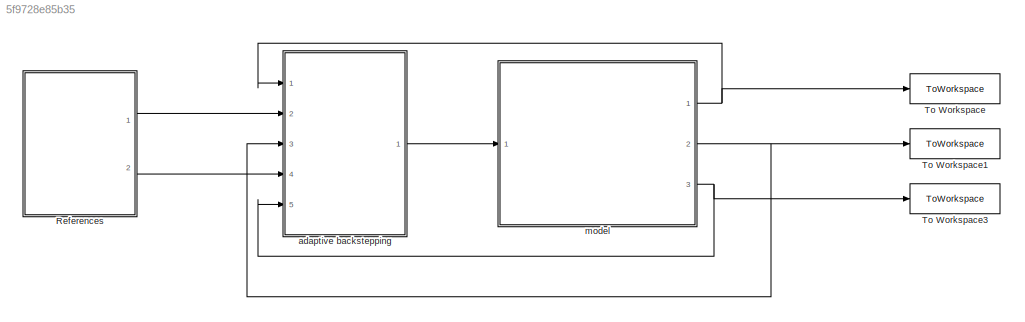
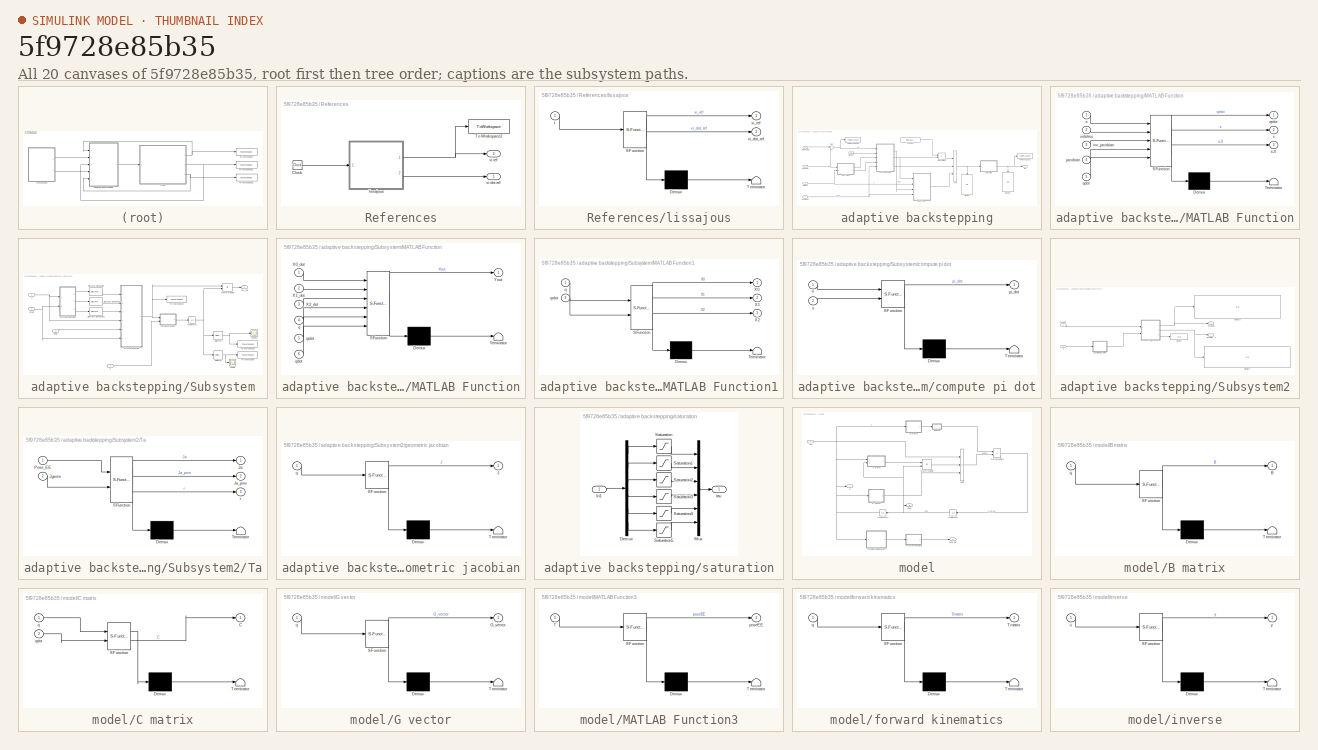
[diagram: thumbnail index - all 20 canvases of the model, root first then tree order]
MODEL slx_5f9728e85b35
KIND model
CONFIG AbsTol = auto
CONFIG EnableMultiTasking = off
CONFIG FixedStep = auto
CONFIG InitFcn = parametersUR5_ADAPTIVE_BACKSTEPPING
CONFIG MaxStep = auto
CONFIG MinStep = auto
CONFIG RelTol = 1e-3
CONFIG SampleTimeConstraint = Unconstrained
CONFIG SolverName = VariableStepAuto
CONFIG StartTime = 0.0
CONFIG StopTime = 30
BLOCK [SubSystem] References
  Ports = [0, 2]
  RequestExecContextInheritance = off
BLOCK [Clock] References/Clock
BLOCK [ToWorkspace] References/To Workspace2
  FixptAsFi = on
  MaxDataPoints = inf
  Ports = [1]
  SampleTime = Ts
  SaveFormat = Timeseries
  VariableName = refEE
BLOCK [SubSystem] References/lissajous
  ErrorFcn = Stateflow.Translate.translate
  PermitHierarchicalResolution = ExplicitOnly
  Ports = [1, 2]
  RequestExecContextInheritance = off
  SFBlockType = MATLAB Function
  TreatAsAtomicUnit = on
BLOCK [Demux] References/lissajous/ Demux 
  Outputs = 1
  Ports = [1, 1]
BLOCK [S-Function] References/lissajous/ SFunction 
  EnableBusSupport = on
  FunctionName = sf_sfun
  PortCounts = [1 3]
  Ports = [1, 3]
  SFcnIsStateOwnerBlock = off
  SFunctionDeploymentMode = off
  Tag = Stateflow S-Function 13
BLOCK [Terminator] References/lissajous/ Terminator 
BLOCK [Inport] References/lissajous/t
BLOCK [Outport] References/lissajous/xi_dot_ref
  Port = 2
BLOCK [Outport] References/lissajous/xi_ref
BLOCK [Outport] References/xi dot ref
BLOCK [Outport] References/xi ref
  Port = 2
BLOCK [ToWorkspace] To Workspace
  FixptAsFi = on
  MaxDataPoints = inf
  Ports = [1]
  SampleTime = Ts
  SaveFormat = Timeseries
  VariableName = q
BLOCK [ToWorkspace] To Workspace1
  FixptAsFi = on
  MaxDataPoints = inf
  Ports = [1]
  SampleTime = Ts
  SaveFormat = Timeseries
  VariableName = qdot
BLOCK [ToWorkspace] To Workspace3
  FixptAsFi = on
  MaxDataPoints = inf
  Ports = [1]
  SampleTime = Ts
  SaveFormat = Timeseries
  VariableName = EEPose
BLOCK [SubSystem] adaptive backstepping
  Ports = [5, 1]
  RequestExecContextInheritance = off
  StopFcn = show_results
BLOCK [Sum] adaptive backstepping/Add
  IconShape = rectangular
  Inputs = +++
  Ports = [3, 1]
BLOCK [Constant] adaptive backstepping/Constant
  Value = diag([1,1,1,1,1,1])*400
BLOCK [Display] adaptive backstepping/Display
  Decimation = 1
  NameLocation = left
  Ports = [1]
BLOCK [Display] adaptive backstepping/Display1
  Decimation = 1
  NameLocation = left
  Ports = [1]
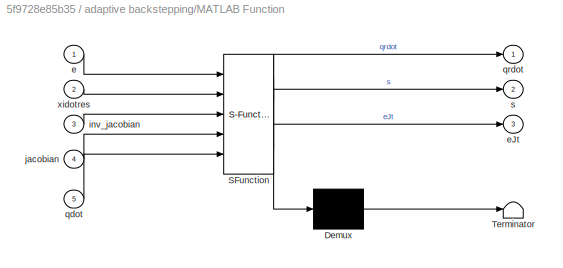
BLOCK [SubSystem] adaptive backstepping/MATLAB Function
  ErrorFcn = Stateflow.Translate.translate
  PermitHierarchicalResolution = ExplicitOnly
  Ports = [5, 3]
  RequestExecContextInheritance = off
  SFBlockType = MATLAB Function
  TreatAsAtomicUnit = on
BLOCK [Demux] adaptive backstepping/MATLAB Function/ Demux 
  Outputs = 1
  Ports = [1, 1]
BLOCK [S-Function] adaptive backstepping/MATLAB Function/ SFunction 
  EnableBusSupport = on
  FunctionName = sf_sfun
  PortCounts = [5 4]
  Ports = [5, 4]
  SFcnIsStateOwnerBlock = off
  SFunctionDeploymentMode = off
  Tag = Stateflow S-Function 5
BLOCK [Terminator] adaptive backstepping/MATLAB Function/ Terminator 
BLOCK [Inport] adaptive backstepping/MATLAB Function/e
BLOCK [Outport] adaptive backstepping/MATLAB Function/eJt
  Port = 3
BLOCK [Inport] adaptive backstepping/MATLAB Function/inv_jacobian
  Port = 3
BLOCK [Inport] adaptive backstepping/MATLAB Function/jacobian
  Port = 4
BLOCK [Inport] adaptive backstepping/MATLAB Function/qdot
  Port = 5
BLOCK [Outport] adaptive backstepping/MATLAB Function/qrdot
  VectorParamsAs1DForOutWhenUnconnected = off
BLOCK [Outport] adaptive backstepping/MATLAB Function/s
  Port = 2
BLOCK [Inport] adaptive backstepping/MATLAB Function/xidotres
  Port = 2
BLOCK [Product] adaptive backstepping/Matrix Multiply2
  Multiplication = Matrix(*)
  Ports = [2, 1]
BLOCK [Inport] adaptive backstepping/Pose EE
  Port = 5
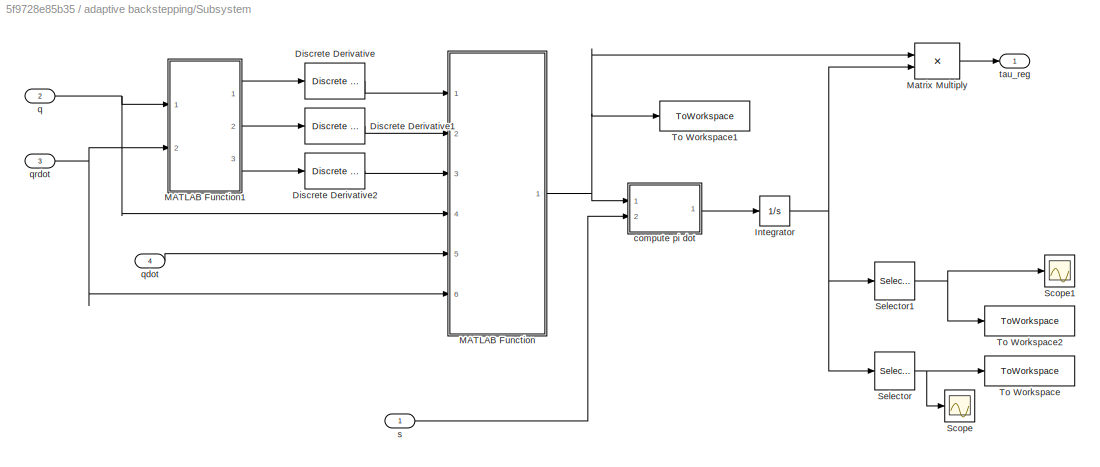
BLOCK [SubSystem] adaptive backstepping/Subsystem
  Ports = [4, 1]
  RequestExecContextInheritance = off
BLOCK [Reference] adaptive backstepping/Subsystem/Discrete Derivative  REF=simulink/Discrete/Discrete Derivative
  Ports = [1, 1]
  SourceBlock = simulink/Discrete/Discrete Derivative
  SourceProductBaseCode = SL
  SourceType = Discrete Derivative
BLOCK [Reference] adaptive backstepping/Subsystem/Discrete Derivative1  REF=simulink/Discrete/Discrete Derivative
  Ports = [1, 1]
  SourceBlock = simulink/Discrete/Discrete Derivative
  SourceProductBaseCode = SL
  SourceType = Discrete Derivative
BLOCK [Reference] adaptive backstepping/Subsystem/Discrete Derivative2  REF=simulink/Discrete/Discrete Derivative
  Ports = [1, 1]
  SourceBlock = simulink/Discrete/Discrete Derivative
  SourceProductBaseCode = SL
  SourceType = Discrete Derivative
BLOCK [Integrator] adaptive backstepping/Subsystem/Integrator
  InitialCondition = init_cond_regress
  Ports = [1, 1]
BLOCK [SubSystem] adaptive backstepping/Subsystem/MATLAB Function
  ErrorFcn = Stateflow.Translate.translate
  PermitHierarchicalResolution = ExplicitOnly
  Ports = [6, 1]
  RequestExecContextInheritance = off
  SFBlockType = MATLAB Function
  TreatAsAtomicUnit = on
BLOCK [Demux] adaptive backstepping/Subsystem/MATLAB Function/ Demux 
  Outputs = 1
  Ports = [1, 1]
BLOCK [S-Function] adaptive backstepping/Subsystem/MATLAB Function/ SFunction 
  EnableBusSupport = on
  FunctionName = sf_sfun
  PortCounts = [6 2]
  Ports = [6, 2]
  SFcnIsStateOwnerBlock = off
  SFunctionDeploymentMode = off
  Tag = Stateflow S-Function 11
BLOCK [Terminator] adaptive backstepping/Subsystem/MATLAB Function/ Terminator 
BLOCK [Inport] adaptive backstepping/Subsystem/MATLAB Function/X0_dot
BLOCK [Inport] adaptive backstepping/Subsystem/MATLAB Function/X1_dot
  Port = 2
BLOCK [Inport] adaptive backstepping/Subsystem/MATLAB Function/X2_dot
  Port = 3
BLOCK [Outport] adaptive backstepping/Subsystem/MATLAB Function/Yout
BLOCK [Inport] adaptive backstepping/Subsystem/MATLAB Function/q
  Port = 4
BLOCK [Inport] adaptive backstepping/Subsystem/MATLAB Function/qdot
  Port = 6
BLOCK [Inport] adaptive backstepping/Subsystem/MATLAB Function/qrdot
  Port = 5
BLOCK [SubSystem] adaptive backstepping/Subsystem/MATLAB Function1
  ErrorFcn = Stateflow.Translate.translate
  PermitHierarchicalResolution = ExplicitOnly
  Ports = [2, 3]
  RequestExecContextInheritance = off
  SFBlockType = MATLAB Function
  TreatAsAtomicUnit = on
BLOCK [Demux] adaptive backstepping/Subsystem/MATLAB Function1/ Demux 
  Outputs = 1
  Ports = [1, 1]
BLOCK [S-Function] adaptive backstepping/Subsystem/MATLAB Function1/ SFunction 
  EnableBusSupport = on
  FunctionName = sf_sfun
  PortCounts = [2 4]
  Ports = [2, 4]
  SFcnIsStateOwnerBlock = off
  SFunctionDeploymentMode = off
  Tag = Stateflow S-Function 8
BLOCK [Terminator] adaptive backstepping/Subsystem/MATLAB Function1/ Terminator 
BLOCK [Outport] adaptive backstepping/Subsystem/MATLAB Function1/X0
BLOCK [Outport] adaptive backstepping/Subsystem/MATLAB Function1/X1
  Port = 2
BLOCK [Outport] adaptive backstepping/Subsystem/MATLAB Function1/X2
  Port = 3
BLOCK [Inport] adaptive backstepping/Subsystem/MATLAB Function1/q
BLOCK [Inport] adaptive backstepping/Subsystem/MATLAB Function1/qrdot
  Port = 2
BLOCK [Product] adaptive backstepping/Subsystem/Matrix Multiply
  Multiplication = Matrix(*)
  Ports = [2, 1]
BLOCK [Scope] adaptive backstepping/Subsystem/Scope
  Floating = off
  NumInputPorts = 1
  Ports = [1]
  ScopeSpecificationString = Simulink.scopes.TimeScopeBlockCfg('CurrentConfiguration', extmgr.ConfigurationSet(extmgr.Configuration('Core','General UI',true),extmgr.Configuration('Core','Source UI',true),extmgr.Configuration('Sources','WiredSimulink',true,'DataLoggingVariableName','ScopeData2'),extmgr.Configuration('Visuals','Time Domain',true,'SerializedDisplays',{struct('MinYLimReal','-0.69968','MaxYLimReal','8.00446','YLab...<+1478ch>
BLOCK [Scope] adaptive backstepping/Subsystem/Scope1
  Floating = off
  NumInputPorts = 1
  Ports = [1]
  ScopeSpecificationString = Simulink.scopes.TimeScopeBlockCfg('CurrentConfiguration', extmgr.ConfigurationSet(extmgr.Configuration('Core','General UI',true),extmgr.Configuration('Core','Source UI',true),extmgr.Configuration('Sources','WiredSimulink',true,'DataLoggingVariableName','ScopeData3'),extmgr.Configuration('Visuals','Time Domain',true,'SerializedDisplays',{struct('MinYLimReal','-3.44805','MaxYLimReal','3.14766','YLab...<+1959ch>
BLOCK [Selector] adaptive backstepping/Subsystem/Selector
  IndexOptions = Index vector (dialog)
  Indices = [1:6]
  InputPortWidth = 60
  OutputSizes = 1
  Ports = [1, 1]
BLOCK [Selector] adaptive backstepping/Subsystem/Selector1
  IndexOptions = Index vector (dialog)
  Indices = [25:60]
  InputPortWidth = 60
  OutputSizes = 1
  Ports = [1, 1]
BLOCK [ToWorkspace] adaptive backstepping/Subsystem/To Workspace
  FixptAsFi = on
  MaxDataPoints = inf
  Ports = [1]
  SampleTime = Ts
  SaveFormat = Timeseries
  VariableName = estim_masses
BLOCK [ToWorkspace] adaptive backstepping/Subsystem/To Workspace1
  FixptAsFi = on
  MaxDataPoints = inf
  Ports = [1]
  SampleTime = Ts
  SaveFormat = Timeseries
  VariableName = Yregressore
BLOCK [ToWorkspace] adaptive backstepping/Subsystem/To Workspace2
  FixptAsFi = on
  MaxDataPoints = inf
  Ports = [1]
  SampleTime = Ts
  SaveFormat = Timeseries
  VariableName = tensors_masses
BLOCK [SubSystem] adaptive backstepping/Subsystem/compute pi dot
  ErrorFcn = Stateflow.Translate.translate
  PermitHierarchicalResolution = ExplicitOnly
  Ports = [2, 1]
  RequestExecContextInheritance = off
  SFBlockType = MATLAB Function
  TreatAsAtomicUnit = on
BLOCK [Demux] adaptive backstepping/Subsystem/compute pi dot/ Demux 
  Outputs = 1
  Ports = [1, 1]
BLOCK [S-Function] adaptive backstepping/Subsystem/compute pi dot/ SFunction 
  EnableBusSupport = on
  FunctionName = sf_sfun
  PortCounts = [2 2]
  Ports = [2, 2]
  SFcnIsStateOwnerBlock = off
  SFunctionDeploymentMode = off
  Tag = Stateflow S-Function 12
BLOCK [Terminator] adaptive backstepping/Subsystem/compute pi dot/ Terminator 
BLOCK [Inport] adaptive backstepping/Subsystem/compute pi dot/Y
BLOCK [Outport] adaptive backstepping/Subsystem/compute pi dot/pi_dot
BLOCK [Inport] adaptive backstepping/Subsystem/compute pi dot/s
  Port = 2
BLOCK [Inport] adaptive backstepping/Subsystem/q
  Port = 2
BLOCK [Inport] adaptive backstepping/Subsystem/qdot
  Port = 4
BLOCK [Inport] adaptive backstepping/Subsystem/qrdot
  Port = 3
BLOCK [Inport] adaptive backstepping/Subsystem/s
BLOCK [Outport] adaptive backstepping/Subsystem/tau_reg
BLOCK [SubSystem] adaptive backstepping/Subsystem2
  Ports = [2, 2]
  RequestExecContextInheritance = off
BLOCK [Display] adaptive backstepping/Subsystem2/Display
  Decimation = 1
  Ports = [1]
BLOCK [Display] adaptive backstepping/Subsystem2/Display2
  Decimation = 1
  Ports = [1]
BLOCK [Display] adaptive backstepping/Subsystem2/Display4
  Decimation = 1
  Ports = [1]
BLOCK [Inport] adaptive backstepping/Subsystem2/Pose EE
BLOCK [SubSystem] adaptive backstepping/Subsystem2/Ta
  ErrorFcn = Stateflow.Translate.translate
  PermitHierarchicalResolution = ExplicitOnly
  Ports = [2, 3]
  RequestExecContextInheritance = off
  SFBlockType = MATLAB Function
  TreatAsAtomicUnit = on
BLOCK [Demux] adaptive backstepping/Subsystem2/Ta/ Demux 
  Outputs = 1
  Ports = [1, 1]
BLOCK [S-Function] adaptive backstepping/Subsystem2/Ta/ SFunction 
  EnableBusSupport = on
  FunctionName = sf_sfun
  PortCounts = [2 4]
  Ports = [2, 4]
  SFcnIsStateOwnerBlock = off
  SFunctionDeploymentMode = off
  Tag = Stateflow S-Function 10
BLOCK [Terminator] adaptive backstepping/Subsystem2/Ta/ Terminator 
BLOCK [Outport] adaptive backstepping/Subsystem2/Ta/Ja
BLOCK [Outport] adaptive backstepping/Subsystem2/Ta/Ja_pinv
  Port = 2
BLOCK [Inport] adaptive backstepping/Subsystem2/Ta/Jgeom
  Port = 2
BLOCK [Inport] adaptive backstepping/Subsystem2/Ta/Pose_EE
BLOCK [Outport] adaptive backstepping/Subsystem2/Ta/r
  Port = 3
BLOCK [SubSystem] adaptive backstepping/Subsystem2/geometric jacobian
  ErrorFcn = Stateflow.Translate.translate
  PermitHierarchicalResolution = ExplicitOnly
  Ports = [1, 1]
  RequestExecContextInheritance = off
  SFBlockType = MATLAB Function
  TreatAsAtomicUnit = on
BLOCK [Demux] adaptive backstepping/Subsystem2/geometric jacobian/ Demux 
  Outputs = 1
  Ports = [1, 1]
BLOCK [S-Function] adaptive backstepping/Subsystem2/geometric jacobian/ SFunction 
  EnableBusSupport = on
  FunctionName = sf_sfun
  PortCounts = [1 2]
  Ports = [1, 2]
  SFcnIsStateOwnerBlock = off
  SFunctionDeploymentMode = off
  Tag = Stateflow S-Function 20
BLOCK [Terminator] adaptive backstepping/Subsystem2/geometric jacobian/ Terminator 
BLOCK [Outport] adaptive backstepping/Subsystem2/geometric jacobian/J
BLOCK [Inport] adaptive backstepping/Subsystem2/geometric jacobian/q
BLOCK [Outport] adaptive backstepping/Subsystem2/jacobian
  Port = 2
BLOCK [Outport] adaptive backstepping/Subsystem2/jacobian^-1
BLOCK [Inport] adaptive backstepping/Subsystem2/q
  Port = 2
BLOCK [Sum] adaptive backstepping/Sum
  Inputs = |+-
  Ports = [2, 1]
BLOCK [ToWorkspace] adaptive backstepping/To Workspace1
  FixptAsFi = on
  MaxDataPoints = inf
  Ports = [1]
  SampleTime = Ts
  SaveFormat = Timeseries
  VariableName = torque
BLOCK [ToWorkspace] adaptive backstepping/To Workspace3
  FixptAsFi = on
  MaxDataPoints = inf
  Ports = [1]
  SampleTime = Ts
  SaveFormat = Timeseries
  VariableName = error
BLOCK [Inport] adaptive backstepping/q dot meas
  Port = 3
BLOCK [Inport] adaptive backstepping/q meas
BLOCK [Inport] adaptive backstepping/ref pose EE
  Port = 4
BLOCK [SubSystem] adaptive backstepping/saturation
  Ports = [1, 1]
  RequestExecContextInheritance = off
BLOCK [Demux] adaptive backstepping/saturation/Demux
  Outputs = 6
  Ports = [1, 6]
BLOCK [Inport] adaptive backstepping/saturation/In1
BLOCK [Mux] adaptive backstepping/saturation/Mux
  DisplayOption = bar
  Inputs = 6
  Ports = [6, 1]
BLOCK [Saturate] adaptive backstepping/saturation/Saturation
  LowerLimit = -150
  UpperLimit = 150
BLOCK [Saturate] adaptive backstepping/saturation/Saturation1
  LowerLimit = -150
  UpperLimit = 150
BLOCK [Saturate] adaptive backstepping/saturation/Saturation2
  LowerLimit = -150
  UpperLimit = 150
BLOCK [Saturate] adaptive backstepping/saturation/Saturation3
  LowerLimit = -28
  UpperLimit = 28
BLOCK [Saturate] adaptive backstepping/saturation/Saturation4
  LowerLimit = -28
  UpperLimit = 28
BLOCK [Saturate] adaptive backstepping/saturation/Saturation5
  LowerLimit = -28
  UpperLimit = 28
BLOCK [Outport] adaptive backstepping/saturation/tau
BLOCK [Outport] adaptive backstepping/tau
BLOCK [Inport] adaptive backstepping/xi dot ref
  NameLocation = top
  Port = 2
BLOCK [SubSystem] model
  Ports = [1, 3]
  RequestExecContextInheritance = off
BLOCK [Sum] model/Add2
  IconShape = rectangular
  Inputs = +--
  Ports = [3, 1]
BLOCK [SubSystem] model/B matrix
  ErrorFcn = Stateflow.Translate.translate
  PermitHierarchicalResolution = ExplicitOnly
  Ports = [1, 1]
  RequestExecContextInheritance = off
  SFBlockType = MATLAB Function
  TreatAsAtomicUnit = on
BLOCK [Demux] model/B matrix/ Demux 
  Outputs = 1
  Ports = [1, 1]
BLOCK [S-Function] model/B matrix/ SFunction 
  EnableBusSupport = on
  FunctionName = sf_sfun
  Parameters = m1,m2,m3,m4,m5,m6
  PortCounts = [1 2]
  Ports = [1, 2]
  SFcnIsStateOwnerBlock = off
  SFunctionDeploymentMode = off
  Tag = Stateflow S-Function 2
BLOCK [Terminator] model/B matrix/ Terminator 
BLOCK [Outport] model/B matrix/B
BLOCK [Inport] model/B matrix/q
BLOCK [SubSystem] model/C matrix
  ErrorFcn = Stateflow.Translate.translate
  PermitHierarchicalResolution = ExplicitOnly
  Ports = [2, 1]
  RequestExecContextInheritance = off
  SFBlockType = MATLAB Function
  TreatAsAtomicUnit = on
BLOCK [Demux] model/C matrix/ Demux 
  Outputs = 1
  Ports = [1, 1]
BLOCK [S-Function] model/C matrix/ SFunction 
  EnableBusSupport = on
  FunctionName = sf_sfun
  Parameters = m2,m3,m4,m5,m6
  PortCounts = [2 2]
  Ports = [2, 2]
  SFcnIsStateOwnerBlock = off
  SFunctionDeploymentMode = off
  Tag = Stateflow S-Function 6
BLOCK [Terminator] model/C matrix/ Terminator 
BLOCK [Outport] model/C matrix/C
BLOCK [Inport] model/C matrix/q
BLOCK [Inport] model/C matrix/qdot
  Port = 2
BLOCK [SubSystem] model/G vector
  ErrorFcn = Stateflow.Translate.translate
  PermitHierarchicalResolution = ExplicitOnly
  Ports = [1, 1]
  RequestExecContextInheritance = off
  SFBlockType = MATLAB Function
  TreatAsAtomicUnit = on
BLOCK [Demux] model/G vector/ Demux 
  Outputs = 1
  Ports = [1, 1]
BLOCK [S-Function] model/G vector/ SFunction 
  EnableBusSupport = on
  FunctionName = sf_sfun
  Parameters = m2,m3,m4,m5,m6
  PortCounts = [1 2]
  Ports = [1, 2]
  SFcnIsStateOwnerBlock = off
  SFunctionDeploymentMode = off
  Tag = Stateflow S-Function 7
BLOCK [Terminator] model/G vector/ Terminator 
BLOCK [Outport] model/G vector/G_vector
BLOCK [Inport] model/G vector/q
BLOCK [Integrator] model/Integrator
  InitialCondition = [0,0,0,0,0,0]'
  NameLocation = top
  Ports = [1, 1]
BLOCK [Integrator] model/Integrator1
  InitialCondition = init_config
  NameLocation = top
  Ports = [1, 1]
BLOCK [SubSystem] model/MATLAB Function3
  ErrorFcn = Stateflow.Translate.translate
  PermitHierarchicalResolution = ExplicitOnly
  Ports = [1, 1]
  RequestExecContextInheritance = off
  SFBlockType = MATLAB Function
  TreatAsAtomicUnit = on
BLOCK [Demux] model/MATLAB Function3/ Demux 
  Outputs = 1
  Ports = [1, 1]
BLOCK [S-Function] model/MATLAB Function3/ SFunction 
  EnableBusSupport = on
  FunctionName = sf_sfun
  PortCounts = [1 2]
  Ports = [1, 2]
  SFcnIsStateOwnerBlock = off
  SFunctionDeploymentMode = off
  Tag = Stateflow S-Function 22
BLOCK [Terminator] model/MATLAB Function3/ Terminator 
BLOCK [Inport] model/MATLAB Function3/T
BLOCK [Outport] model/MATLAB Function3/poseEE
BLOCK [Product] model/Matrix Multiply
  Multiplication = Matrix(*)
  Ports = [2, 1]
BLOCK [Product] model/MatrixMultiply1
  Multiplication = Matrix(*)
  Ports = [2, 1]
BLOCK [SubSystem] model/forward kinematics
  ErrorFcn = Stateflow.Translate.translate
  PermitHierarchicalResolution = ExplicitOnly
  Ports = [1, 1]
  RequestExecContextInheritance = off
  SFBlockType = MATLAB Function
  TreatAsAtomicUnit = on
BLOCK [Demux] model/forward kinematics/ Demux 
  Outputs = 1
  Ports = [1, 1]
BLOCK [S-Function] model/forward kinematics/ SFunction 
  EnableBusSupport = on
  FunctionName = sf_sfun
  PortCounts = [1 2]
  Ports = [1, 2]
  SFcnIsStateOwnerBlock = off
  SFunctionDeploymentMode = off
  Tag = Stateflow S-Function 9
BLOCK [Terminator] model/forward kinematics/ Terminator 
BLOCK [Outport] model/forward kinematics/Tmatrix
BLOCK [Inport] model/forward kinematics/q
BLOCK [SubSystem] model/inverse
  ErrorFcn = Stateflow.Translate.translate
  PermitHierarchicalResolution = ExplicitOnly
  Ports = [1, 1]
  RequestExecContextInheritance = off
  SFBlockType = MATLAB Function
  TreatAsAtomicUnit = on
BLOCK [Demux] model/inverse/ Demux 
  Outputs = 1
  Ports = [1, 1]
BLOCK [S-Function] model/inverse/ SFunction 
  EnableBusSupport = on
  FunctionName = sf_sfun
  PortCounts = [1 2]
  Ports = [1, 2]
  SFcnIsStateOwnerBlock = off
  SFunctionDeploymentMode = off
  Tag = Stateflow S-Function 19
BLOCK [Terminator] model/inverse/ Terminator 
BLOCK [Inport] model/inverse/u
BLOCK [Outport] model/inverse/y
BLOCK [Outport] model/pose EE
  Port = 3
BLOCK [Outport] model/q
BLOCK [Outport] model/qdot
  Port = 2
BLOCK [Inport] model/tau
LINE References/Clock:1 -> References/lissajous:1
NET References/lissajous:1 -> References/To Workspace2:1, References/xi ref:1
LINE References/lissajous:2 -> References/xi dot ref:1
LINE References:1 -> adaptive backstepping:2
LINE References:2 -> adaptive backstepping:4
NET adaptive backstepping/Add:1 -> adaptive backstepping/Display:1, adaptive backstepping/saturation:1
LINE adaptive backstepping/Constant:1 -> adaptive backstepping/Matrix Multiply2:1
LINE adaptive backstepping/MATLAB Function:1 -> adaptive backstepping/Subsystem:3
NET adaptive backstepping/MATLAB Function:2 -> adaptive backstepping/Matrix Multiply2:2, adaptive backstepping/Subsystem:1
LINE adaptive backstepping/MATLAB Function:3 -> adaptive backstepping/Add:2
LINE adaptive backstepping/Matrix Multiply2:1 -> adaptive backstepping/Add:1
NET adaptive backstepping/Pose EE:1 -> adaptive backstepping/Subsystem2:1, adaptive backstepping/Sum:2
LINE adaptive backstepping/Subsystem/Discrete Derivative1:1 -> adaptive backstepping/Subsystem/MATLAB Function:2
LINE adaptive backstepping/Subsystem/Discrete Derivative2:1 -> adaptive backstepping/Subsystem/MATLAB Function:3
LINE adaptive backstepping/Subsystem/Discrete Derivative:1 -> adaptive backstepping/Subsystem/MATLAB Function:1
NET adaptive backstepping/Subsystem/Integrator:1 -> adaptive backstepping/Subsystem/Matrix Multiply:2, adaptive backstepping/Subsystem/Selector1:1, adaptive backstepping/Subsystem/Selector:1
LINE adaptive backstepping/Subsystem/MATLAB Function1:1 -> adaptive backstepping/Subsystem/Discrete Derivative:1
LINE adaptive backstepping/Subsystem/MATLAB Function1:2 -> adaptive backstepping/Subsystem/Discrete Derivative1:1
LINE adaptive backstepping/Subsystem/MATLAB Function1:3 -> adaptive backstepping/Subsystem/Discrete Derivative2:1
NET adaptive backstepping/Subsystem/MATLAB Function:1 -> adaptive backstepping/Subsystem/Matrix Multiply:1, adaptive backstepping/Subsystem/To Workspace1:1, adaptive backstepping/Subsystem/compute pi dot:1
LINE adaptive backstepping/Subsystem/Matrix Multiply:1 -> adaptive backstepping/Subsystem/tau_reg:1
NET adaptive backstepping/Subsystem/Selector1:1 -> adaptive backstepping/Subsystem/Scope1:1, adaptive backstepping/Subsystem/To Workspace2:1
NET adaptive backstepping/Subsystem/Selector:1 -> adaptive backstepping/Subsystem/Scope:1, adaptive backstepping/Subsystem/To Workspace:1
LINE adaptive backstepping/Subsystem/compute pi dot:1 -> adaptive backstepping/Subsystem/Integrator:1
NET adaptive backstepping/Subsystem/q:1 -> adaptive backstepping/Subsystem/MATLAB Function1:1, adaptive backstepping/Subsystem/MATLAB Function:4
LINE adaptive backstepping/Subsystem/qdot:1 -> adaptive backstepping/Subsystem/MATLAB Function:5
NET adaptive backstepping/Subsystem/qrdot:1 -> adaptive backstepping/Subsystem/MATLAB Function1:2, adaptive backstepping/Subsystem/MATLAB Function:6
LINE adaptive backstepping/Subsystem/s:1 -> adaptive backstepping/Subsystem/compute pi dot:2
LINE adaptive backstepping/Subsystem2/Pose EE:1 -> adaptive backstepping/Subsystem2/Ta:1
NET adaptive backstepping/Subsystem2/Ta:1 -> adaptive backstepping/Subsystem2/Display2:1, adaptive backstepping/Subsystem2/jacobian:1
NET adaptive backstepping/Subsystem2/Ta:2 -> adaptive backstepping/Subsystem2/Display4:1, adaptive backstepping/Subsystem2/jacobian^-1:1
LINE adaptive backstepping/Subsystem2/Ta:3 -> adaptive backstepping/Subsystem2/Display:1
LINE adaptive backstepping/Subsystem2/geometric jacobian:1 -> adaptive backstepping/Subsystem2/Ta:2
LINE adaptive backstepping/Subsystem2/q:1 -> adaptive backstepping/Subsystem2/geometric jacobian:1
LINE adaptive backstepping/Subsystem2:1 -> adaptive backstepping/MATLAB Function:3
LINE adaptive backstepping/Subsystem2:2 -> adaptive backstepping/MATLAB Function:4
LINE adaptive backstepping/Subsystem:1 -> adaptive backstepping/Add:3
NET adaptive backstepping/Sum:1 -> adaptive backstepping/MATLAB Function:1, adaptive backstepping/To Workspace3:1
NET adaptive backstepping/q dot meas:1 -> adaptive backstepping/MATLAB Function:5, adaptive backstepping/Subsystem:4
NET adaptive backstepping/q meas:1 -> adaptive backstepping/Subsystem2:2, adaptive backstepping/Subsystem:2
LINE adaptive backstepping/ref pose EE:1 -> adaptive backstepping/Sum:1
LINE adaptive backstepping/saturation/Demux:1 -> adaptive backstepping/saturation/Saturation:1
LINE adaptive backstepping/saturation/Demux:2 -> adaptive backstepping/saturation/Saturation1:1
LINE adaptive backstepping/saturation/Demux:3 -> adaptive backstepping/saturation/Saturation2:1
LINE adaptive backstepping/saturation/Demux:4 -> adaptive backstepping/saturation/Saturation3:1
LINE adaptive backstepping/saturation/Demux:5 -> adaptive backstepping/saturation/Saturation4:1
LINE adaptive backstepping/saturation/Demux:6 -> adaptive backstepping/saturation/Saturation5:1
LINE adaptive backstepping/saturation/In1:1 -> adaptive backstepping/saturation/Demux:1
LINE adaptive backstepping/saturation/Mux:1 -> adaptive backstepping/saturation/tau:1
LINE adaptive backstepping/saturation/Saturation1:1 -> adaptive backstepping/saturation/Mux:2
LINE adaptive backstepping/saturation/Saturation2:1 -> adaptive backstepping/saturation/Mux:3
LINE adaptive backstepping/saturation/Saturation3:1 -> adaptive backstepping/saturation/Mux:4
LINE adaptive backstepping/saturation/Saturation4:1 -> adaptive backstepping/saturation/Mux:5
LINE adaptive backstepping/saturation/Saturation5:1 -> adaptive backstepping/saturation/Mux:6
LINE adaptive backstepping/saturation/Saturation:1 -> adaptive backstepping/saturation/Mux:1
NET adaptive backstepping/saturation:1 -> adaptive backstepping/Display1:1, adaptive backstepping/To Workspace1:1, adaptive backstepping/tau:1
LINE adaptive backstepping/xi dot ref:1 -> adaptive backstepping/MATLAB Function:2
LINE adaptive backstepping:1 -> model:1
LINE model/Add2:1 -> model/MatrixMultiply1:2
LINE model/B matrix:1 -> model/inverse:1
LINE model/C matrix:1 -> model/Matrix Multiply:1
LINE model/G vector:1 -> model/Add2:3
NET model/Integrator1:1 -> model/B matrix:1, model/C matrix:1, model/G vector:1, model/forward kinematics:1, model/q:1
NET model/Integrator:1 -> model/C matrix:2, model/Integrator1:1, model/Matrix Multiply:2, model/qdot:1
LINE model/MATLAB Function3:1 -> model/pose EE:1
LINE model/Matrix Multiply:1 -> model/Add2:2
LINE model/MatrixMultiply1:1 -> model/Integrator:1
LINE model/forward kinematics:1 -> model/MATLAB Function3:1
LINE model/inverse:1 -> model/MatrixMultiply1:1
LINE model/tau:1 -> model/Add2:1
NET model:1 -> To Workspace:1, adaptive backstepping:1
NET model:2 -> To Workspace1:1, adaptive backstepping:3
NET model:3 -> To Workspace3:1, adaptive backstepping:5
note: NET lines group one-source signal fan-out (src -> all destinations, sorted); 1:1 wires keep LINE
CHART adaptive backstepping/Subsystem/MATLAB Function states=1 transitions=1
  STATE_LABEL 'eML_blk_kernel()'
  STATE_LABEL 'SCRIPT:\nfunction Yout = fcn(X0_dot, X1_dot, X2_dot, q, qrdot, qdot)\nY_1 = zeros(6,10);\nY_2 = zeros(6,10);\nY_3 = zeros(6,10);\nY_4 = zeros(6,10);\nY_5 = zeros(6,10);\nY_6 = zeros(6,10);\nYout = zeros(6, 60);\n\nq1 = q(1);\nq2 = q(2);\nq3 = q(3);\nq4 = q(4);\nq5 = q(5);\nq6 = q(6);\n\nq1rdot = qrdot(1);\nq2rdot = qrdot(2);\nq3rdot = qrdot(3);\nq4rdot = qrdot(4);\nq5rdot = qrdot(5);\nq6rdot = qrdot(6);\n\nq1dot = qdot(1...<+1945ch>'
CHART adaptive backstepping/Subsystem/compute pi dot states=1 transitions=1
  STATE_LABEL 'eML_blk_kernel()'
  STATE_LABEL "SCRIPT:\nfunction pi_dot = fcn(Y, s)\n\nR = 0.01*eye(60);\n%R = 0.1*eye(60);\n\npi_dot = inv(R)*Y'*s;\n"
CHART References/lissajous states=1 transitions=1
  STATE_LABEL 'eML_blk_kernel()'
  STATE_LABEL "SCRIPT:\nfunction [xi_ref,xi_dot_ref] = fcn(t)\n    xi_ref = zeros(6,1);\n    xi_dot_ref = zeros(6,1);\n\n    initial_position = [-0.0597   -0.1914    0.6397];\n    initial_orientation = [1.5558   -1.5797    3.0630]';\n    A =0.15;\n    metodo_di_slow = 0.1;\n    p = 3;\n    q = 2;\n    \n    x = A*sin(p*t*metodo_di_slow +pi/2) + initial_position(1)-A;\n    y = initial_position(2);\n    z = A*sin(q*t*metodo_di_...<+351ch>"
CHART model/inverse states=1 transitions=1
  STATE_LABEL 'eML_blk_kernel()'
  STATE_LABEL 'SCRIPT:\nfunction y = fcn(u)\n\ny = inv(u);\n'
CHART adaptive backstepping/Subsystem2/geometric jacobian states=1 transitions=1
  STATE_LABEL 'eML_blk_kernel()'
  STATE_LABEL 'SCRIPT:\nfunction J = jacob0(q)\n\nJ = Jacobian0(q(1),q(2),q(3),q(4),q(5),q(6));'
CHART model/MATLAB Function3 states=1 transitions=1
  STATE_LABEL 'eML_blk_kernel()'
  STATE_LABEL "SCRIPT:\nfunction poseEE = fcn(T)\n    poseEE = zeros(6,1);\n    coder.extrinsic('tform2eul');\n    \n    O = [0; 0; 0];        % world origin frame\n\n    position = T * [O; 1];\n    orientation = tform2eul(T, 'ZYZ');\n\n    poseEE = [position(1:3); orientation'];\nend"
CHART model/B matrix states=1 transitions=1
  STATE_LABEL 'eML_blk_kernel()'
  STATE_LABEL 'SCRIPT:\nfunction B = fcn(q, m1, m2, m3, m4, m5, m6)\n\nB = Mmatrix(m1,m2,m3,m4,m5,m6,q(2),q(3),q(4),q(5));\n'
CHART adaptive backstepping/MATLAB Function states=1 transitions=1
  STATE_LABEL 'eML_blk_kernel()'
  STATE_LABEL "SCRIPT:\nfunction [qrdot, s, eJt] = fcn(e, xidotres, inv_jacobian, jacobian, qdot)\n\n%lambda=diag([1,1,1,0.01,0.01,0.01]); Buonino\n%lambda=0.1*diag([1,1,1,0.01,0.01,0.01]); %Buonino moltiplicato 100*I*s\nlambda =100*diag([1,1,1,0.8,0.1,0.01]);\n\nedot = xidotres - jacobian*(qdot);\n\ns = inv_jacobian * (edot + lambda * e);\n\nqrdot = s + qdot;\n\n%gain = 1*diag([1,1,1,0.01,0.01,0.01]);\n\neJt = jacobian'*e;"
CHART model/C matrix states=1 transitions=1
  STATE_LABEL 'eML_blk_kernel()'
  STATE_LABEL 'SCRIPT:\nfunction C = C_matrix(q, qdot, m2, m3, m4, m5, m6)\n\nC = Cmatrix(m2,m3,m4,m5,m6,q(2),q(3),q(4),q(5),qdot(1),qdot(2),qdot(3),qdot(4),qdot(5),qdot(6));\n'
CHART model/G vector states=1 transitions=1
  STATE_LABEL 'eML_blk_kernel()'
  STATE_LABEL "SCRIPT:\nfunction G_vector = gravload(q, m2, m3, m4, m5, m6)\n\nG_vector = Gvector(m2,m3,m4,m5,m6,q(2),q(3),q(4),q(5))';\n"
CHART adaptive backstepping/Subsystem/MATLAB Function1 states=1 transitions=1
  STATE_LABEL 'eML_blk_kernel()'
  STATE_LABEL 'SCRIPT:\nfunction [X0, X1, X2] = getX(q, qrdot)\n\nq1 = q(1);\nq2 = q(2);\nq3 = q(3);\nq4 = q(4);\nq5 = q(5);\nq6 = q(6);\n\nq1rdot = qrdot(1);\nq2rdot = qrdot(2);\nq3rdot = qrdot(3);\nq4rdot = qrdot(4);\nq5rdot = qrdot(5);\nq6rdot = qrdot(6);\n\n\nX0 = zeros(6,6);\nX1 = zeros(6,18);\nX2 = zeros(6,36);\n\nX0_1_s = X0_1_mat;\nX0_2_s = X0_2_mat(q1,q2,q1rdot,q2rdot);\nX0_3_s = X0_3_mat(q1,q2,q3,q1rdot,q2rdot,q3rdot);\nX0_4_s...<+1004ch>'
CHART model/forward kinematics states=1 transitions=1
  STATE_LABEL 'eML_blk_kernel()'
  STATE_LABEL 'SCRIPT:\nfunction Tmatrix = fkine(q)\n%#codegen\n\n%    This function was generated by the Symbolic Math Toolbox version 8.6.\n%    20-Jan-2022 14:28:01\n\nq1 = q(1);\nq2 = q(2);\nq3 = q(3);\nq4 = q(4);\nq5 = q(5);\nq6 = q(6);\nt2 = cos(q1);\nt3 = cos(q2);\nt4 = cos(q3);\nt5 = cos(q4);\nt6 = cos(q5);\nt7 = cos(q6);\nt8 = sin(q1);\nt9 = sin(q2);\nt10 = sin(q3);\nt11 = sin(q4);\nt12 = sin(q5);\nt13 = sin(q6);\nt14 = q2+q3;\n...<+2803ch>'
CHART adaptive backstepping/Subsystem2/Ta states=1 transitions=1
  STATE_LABEL 'eML_blk_kernel()'
  STATE_LABEL 'SCRIPT:\nfunction [Ja, Ja_pinv, r ]= fcn(Pose_EE, Jgeom)\nJa=zeros(6,6);\nJa_pinv=zeros(6,6);\n\nphi = Pose_EE(4);\ntheta = Pose_EE(5);\n\n%% con ZYZ\nTa = [0     -sin(phi)       cos(phi)*sin(theta) ;\n      0      cos(phi)       sin(phi)*sin(theta) ;\n      1          0                    cos(theta)];\n\n\nJa = inv([eye(3), zeros(3); zeros(3), Ta]) * Jgeom;\n\n%Ja_pinv = inv(Ja);\nJa_pinv = pinv(Ja, 0.0005);\n%Ja_...<+61ch>'
CHART  states=0 transitions=0
CHART  states=0 transitions=0
CHART  states=0 transitions=0
CHART  states=0 transitions=0
CHART  states=0 transitions=0
CHART  states=0 transitions=0
CHART  states=0 transitions=0
CHART  states=0 transitions=0
CHART  states=0 transitions=0
CHART  states=0 transitions=0
CHART  states=0 transitions=0
CHART  states=0 transitions=0
CHART  states=0 transitions=0
